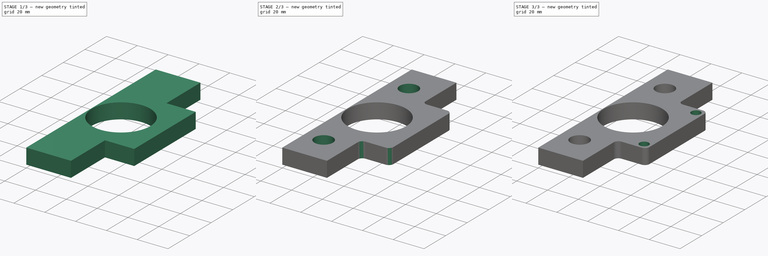
[diagram: build sequence overview — one tinted view per stage of 3, left to right]
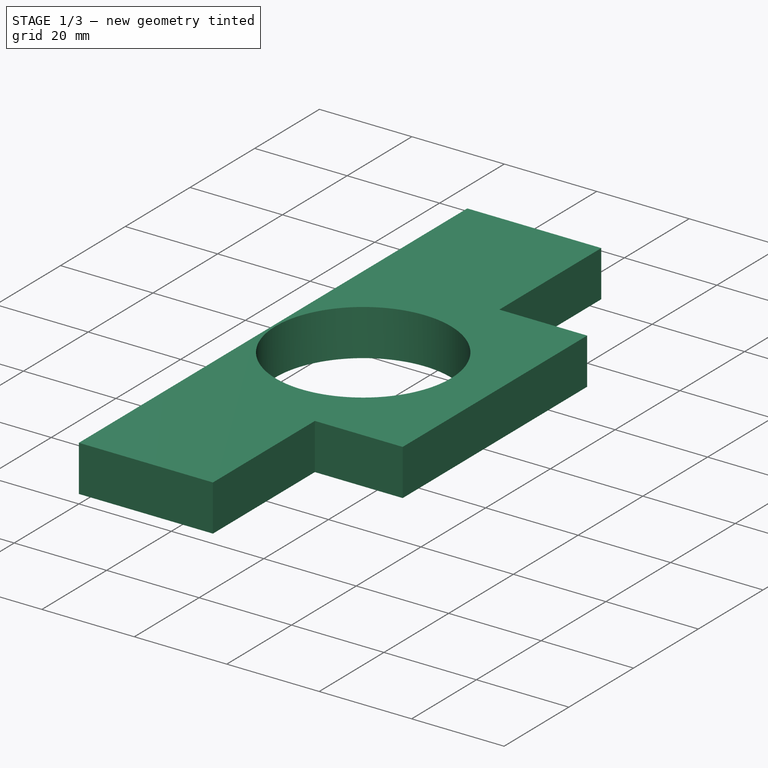
[diagram: stage 1 of 3 — iso view after this stage's code; geometry added in this stage tinted green]
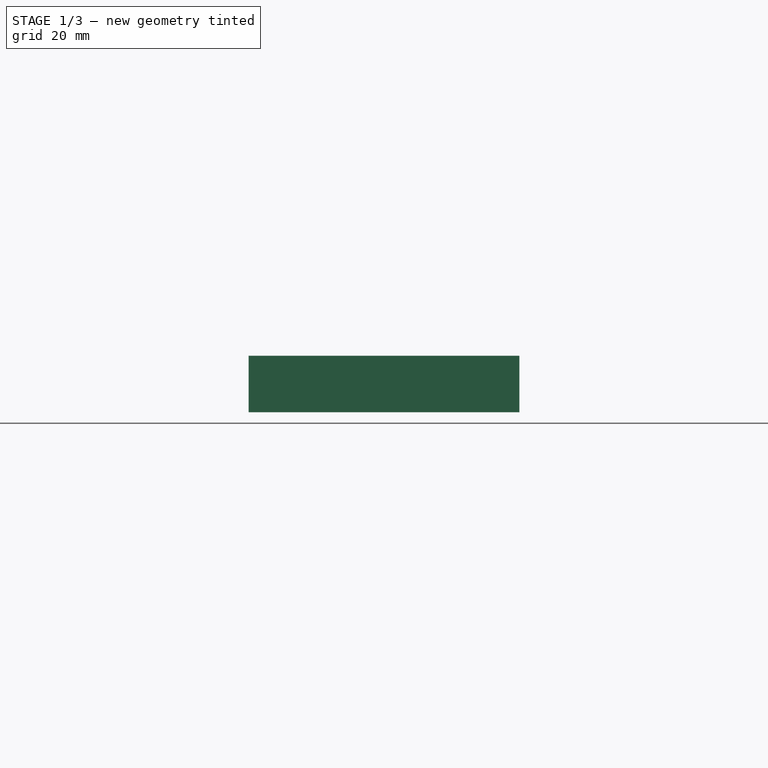
[diagram: stage 1 of 3 — front view after this stage's code; geometry added in this stage tinted green]
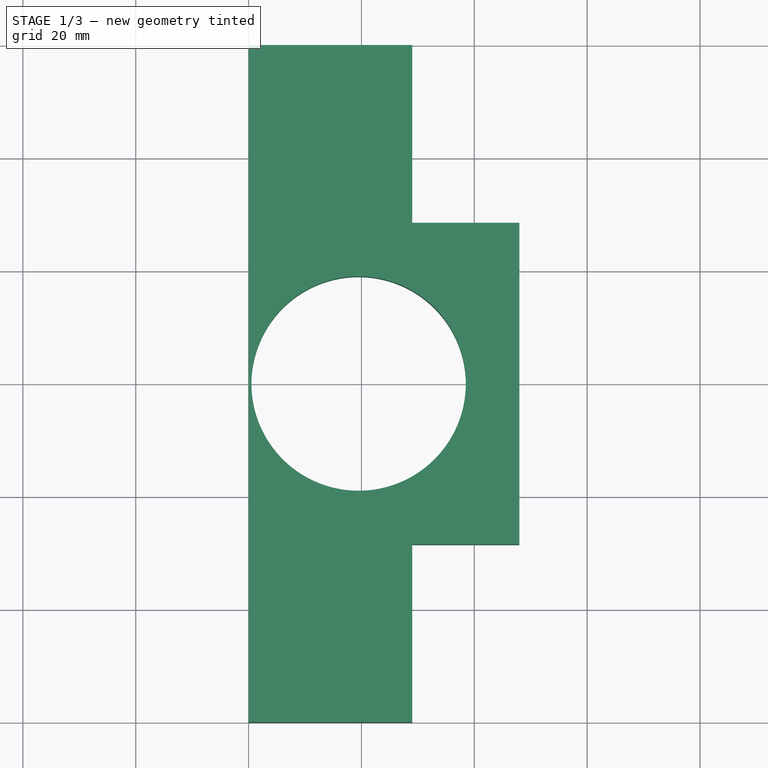
[diagram: stage 1 of 3 — top view after this stage's code; geometry added in this stage tinted green]
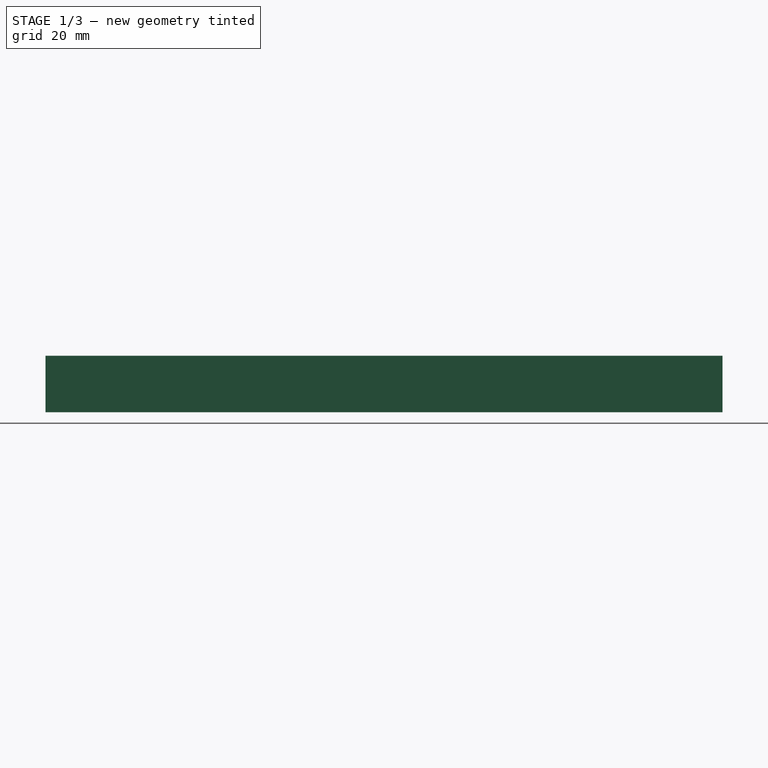
[diagram: stage 1 of 3 — right view after this stage's code; geometry added in this stage tinted green]
FCSTD DOCUMENT
Label: Z_T
objects: Sketcher::SketchObject×5, PartDesign::Pocket×4, PartDesign::Pad×1, Part::Fillet×1
note: 16 computed .brp shape members not serialized (recipe doc carries the construction recipe); baked Part::Feature solids carry a one-line shape summary decoded from their .brp

FEATURE [Sketcher::SketchObject] Sketch
  sketch-geometry (8):
    g0: LineSegment StartX=0 StartY=0 StartZ=0 EndX=0 EndY=120 EndZ=0
    g1: LineSegment StartX=0 StartY=120 StartZ=0 EndX=29 EndY=120 EndZ=0
    g2: LineSegment StartX=29 StartY=120 StartZ=0 EndX=29 EndY=88.5 EndZ=0
    g3: LineSegment StartX=29 StartY=88.5 StartZ=0 EndX=48 EndY=88.5 EndZ=0
    g4: LineSegment StartX=48 StartY=88.5 StartZ=0 EndX=48 EndY=31.5 EndZ=0
    g5: LineSegment StartX=48 StartY=31.5 StartZ=0 EndX=29 EndY=31.5 EndZ=0
    g6: LineSegment StartX=29 StartY=31.5 StartZ=0 EndX=29 EndY=0 EndZ=0
    g7: LineSegment StartX=29 StartY=0 StartZ=0 EndX=0 EndY=0 EndZ=0
  constraints (24):
    c: PointOnObject(g0,g-2)
    c: Vertical(g0)
    c: Coincident(g0,g1)
    c: Horizontal(g1)
    c: Coincident(g1,g2)
    c: Vertical(g2)
    c: Coincident(g2,g3)
    c: Horizontal(g3)
    c: Coincident(g3,g4)
    c: Vertical(g4)
    c: Coincident(g4,g5)
    c: Horizontal(g5)
    c: Coincident(g5,g6)
    c: PointOnObject(g6,g-1)
    c: Vertical(g6)
    c: Coincident(g6,g7)
    c: Coincident(g7,g-1)
    c: DistanceY(g0) = 120
    c: Coincident(g0,g-1)
    c: DistanceX(g3,g0) = -48
    c: DistanceY(g4) = -57
    c: Equal(g2,g6)
    c: Equal(g7,g1)
    c: DistanceX(g7) = -29
FEATURE [PartDesign::Pad] Pad
  Length = 10
  Length2 = 100
  Reversed = true
  Sketch = -> Sketch
  Type = 0
FEATURE [Sketcher::SketchObject] Sketch001
  Support = -> Pad [Face9]
  sketch-geometry (1):
    g0: Circle CenterX=19.5 CenterY=60 CenterZ=0 NormalX=0 NormalY=0 NormalZ=1 Radius=19
  constraints (3):
    c: DistanceX(g0) = 19.5
    c: DistanceY(g0) = 60
    c: Radius(g0) = 19
FEATURE [PartDesign::Pocket] Pocket
  Length = 5
  Sketch = -> Sketch001
  Type = 1
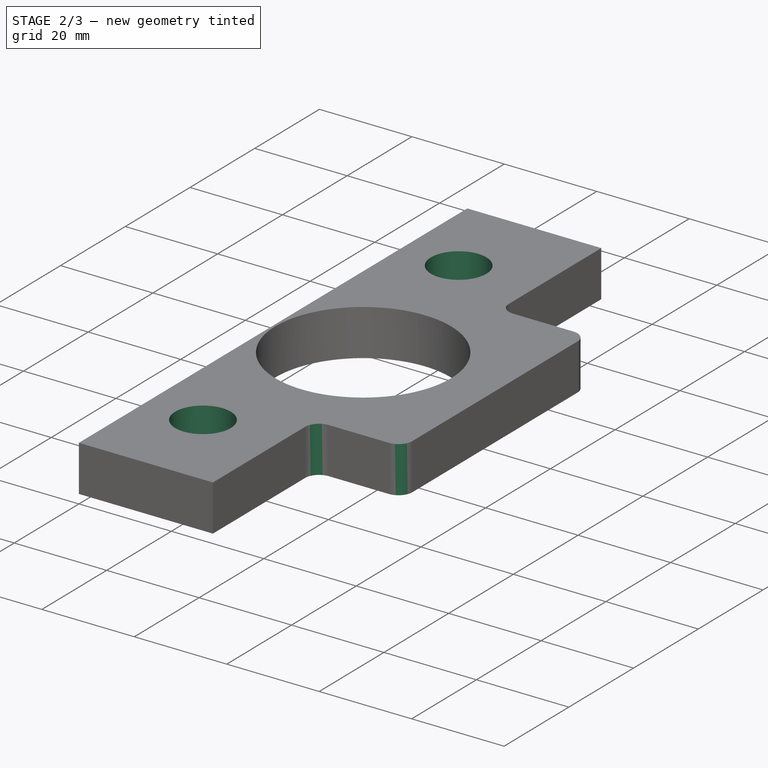
[diagram: stage 2 of 3 — iso view after this stage's code; geometry added in this stage tinted green]
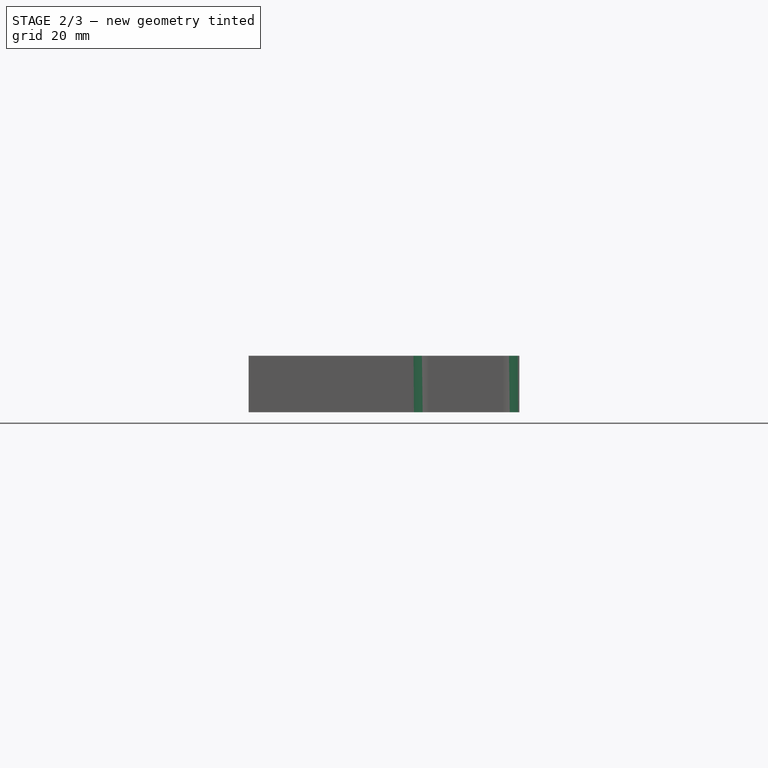
[diagram: stage 2 of 3 — front view after this stage's code; geometry added in this stage tinted green]
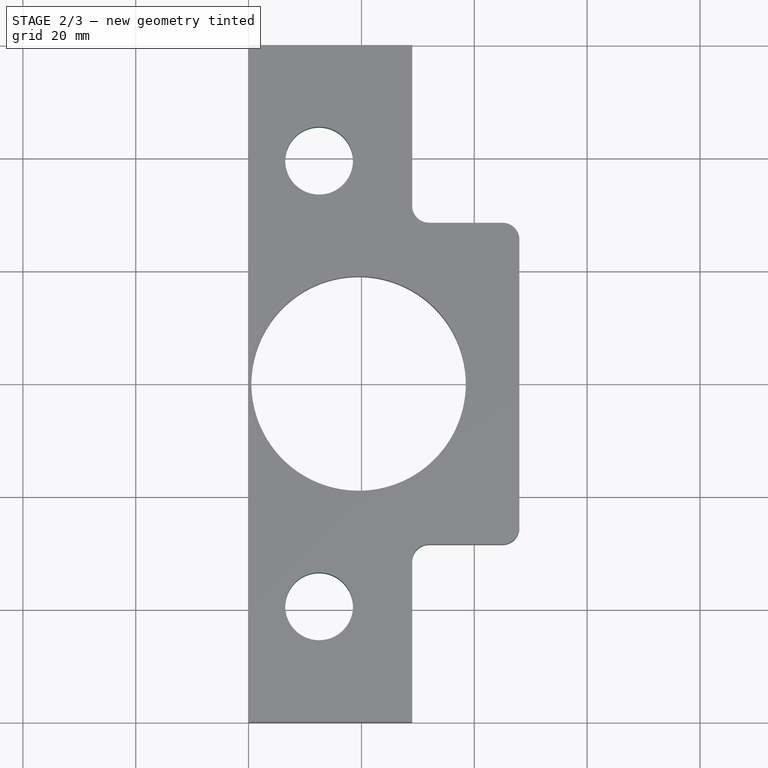
[diagram: stage 2 of 3 — top view after this stage's code; geometry added in this stage tinted green]
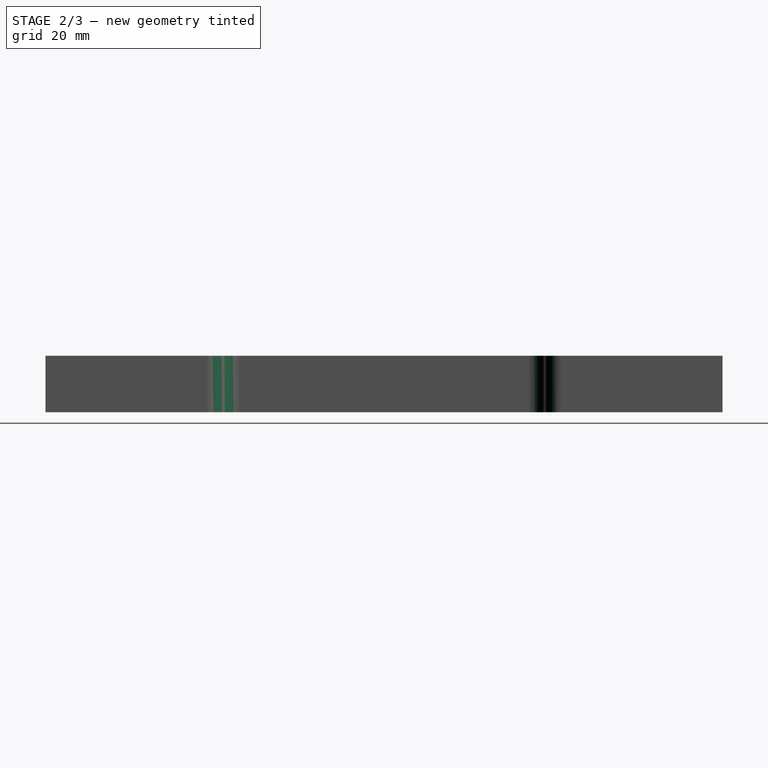
[diagram: stage 2 of 3 — right view after this stage's code; geometry added in this stage tinted green]
FEATURE [Sketcher::SketchObject] Sketch002
  Support = -> Pocket [Face4]
  sketch-geometry (3):
    g0: LineSegment [constr] StartX=0 StartY=60 StartZ=0 EndX=48 EndY=60 EndZ=0
    g1: Circle CenterX=12.5 CenterY=99.5 CenterZ=0 NormalX=0 NormalY=0 NormalZ=1 Radius=6
    g2: Circle CenterX=12.5 CenterY=20.5 CenterZ=0 NormalX=0 NormalY=0 NormalZ=1 Radius=6
  constraints (9):
    c: PointOnObject(g0,g-2)
    c: Horizontal(g0)
    c: DistanceX(g0) = 48
    c: DistanceY(g-1,g0) = 60
    c: Equal(g2,g1)
    c: Radius(g1) = 6
    c: Symmetric(g1,g2,g0)
    c: DistanceX(g2) = 12.5
    c: DistanceY(g2) = 20.5
FEATURE [PartDesign::Pocket] Pocket001
  Length = 5
  Sketch = -> Sketch002
  Type = 1
FEATURE [Part::Fillet] Fillet
  Base = -> Pocket001
  Edges = 4 edges r=3: [Edge30,Edge31,Edge35,Edge36]
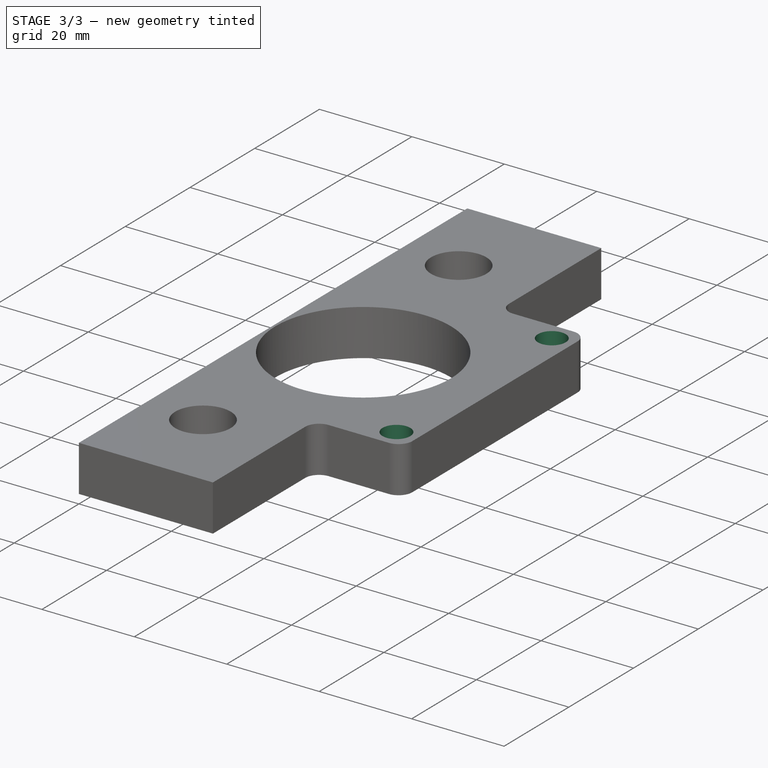
[diagram: stage 3 of 3 — iso view after this stage's code; geometry added in this stage tinted green]
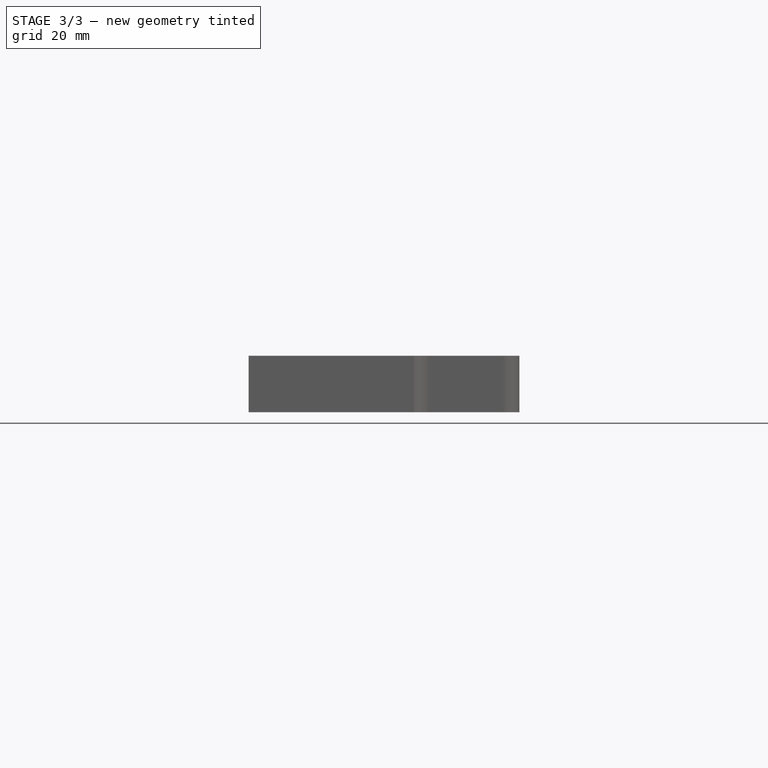
[diagram: stage 3 of 3 — front view after this stage's code; geometry added in this stage tinted green]
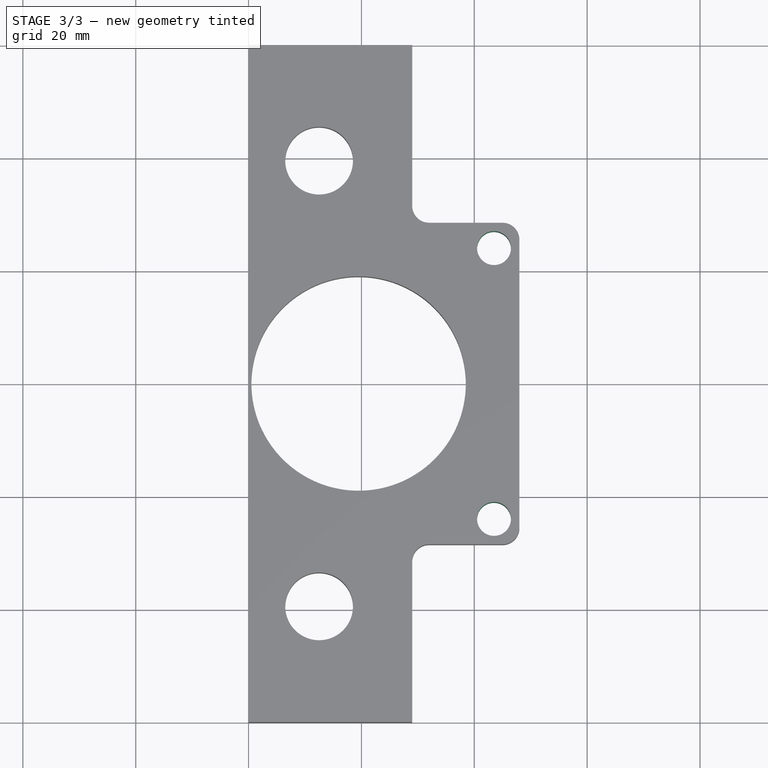
[diagram: stage 3 of 3 — top view after this stage's code; geometry added in this stage tinted green]
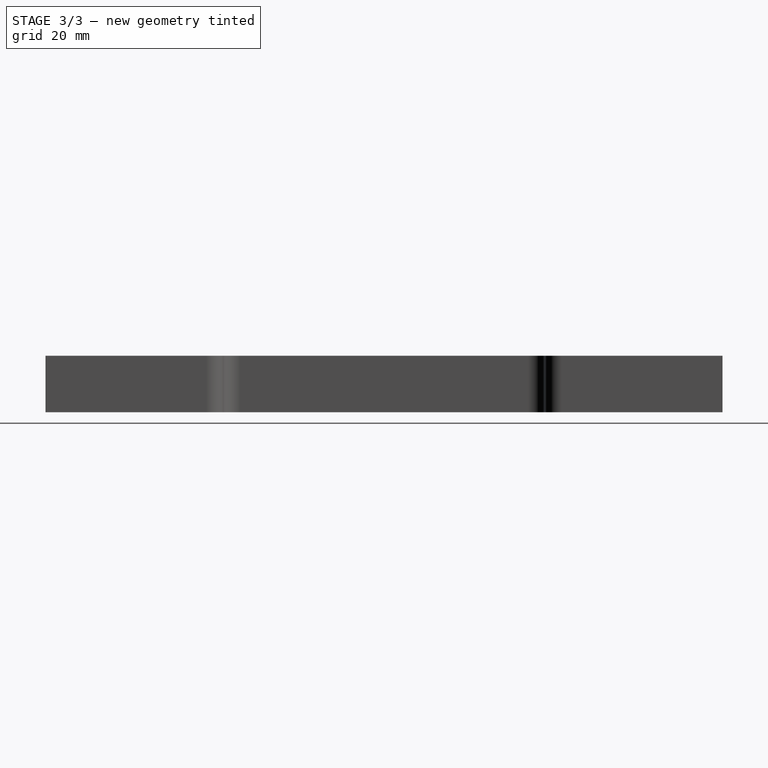
[diagram: stage 3 of 3 — right view after this stage's code; geometry added in this stage tinted green]
FEATURE [Sketcher::SketchObject] Sketch003
  Placement = pos=(0,0,0) rot=(0.57735,-0.57735,-0.57735;2.0944rad)
  Support = -> Fillet [Face6]
  sketch-geometry (6):
    g0: Circle CenterX=-111 CenterY=-5.5 CenterZ=0 NormalX=0 NormalY=0 NormalZ=1 Radius=3
    g1: Circle CenterX=-87 CenterY=-5.5 CenterZ=0 NormalX=0 NormalY=0 NormalZ=1 Radius=3
    g2: Circle CenterX=-33 CenterY=-5.5 CenterZ=0 NormalX=0 NormalY=0 NormalZ=1 Radius=3
    g3: Circle CenterX=-9 CenterY=-5.5 CenterZ=0 NormalX=0 NormalY=0 NormalZ=1 Radius=3
    g4: LineSegment [constr] StartX=-120 StartY=-5.5 StartZ=0 EndX=0 EndY=-5.5 EndZ=0
    g5: LineSegment [constr] StartX=-60 StartY=-10 StartZ=0 EndX=-60 EndY=0 EndZ=0
  constraints (19):
    c: PointOnObject(g4,g-2)
    c: Horizontal(g4)
    c: PointOnObject(g0,g4)
    c: PointOnObject(g1,g4)
    c: PointOnObject(g2,g4)
    c: PointOnObject(g3,g4)
    c: PointOnObject(g5,g-1)
    c: DistanceY(g5) = 10
    c: Equal(g0,g1)
    c: Equal(g1,g2)
    c: Equal(g2,g3)
    c: Radius(g3) = 3
    c: Symmetric(g2,g1,g5)
    c: Symmetric(g0,g3,g5)
    c: DistanceX(g4) = 120
    c: DistanceY(g-1,g4) = -5.5
    c: DistanceX(g-1,g5) = -60
    c: DistanceX(g3,g4) = 9
    c: DistanceX(g2,g4) = 33
FEATURE [PartDesign::Pocket] Pocket002
  Length = 15
  Sketch = -> Sketch003
  Type = 0
FEATURE [Sketcher::SketchObject] Sketch004
  Support = -> Pocket002 [Face1]
  sketch-geometry (3):
    g0: Circle CenterX=43.5 CenterY=84 CenterZ=0 NormalX=0 NormalY=0 NormalZ=1 Radius=3
    g1: Circle CenterX=43.5 CenterY=36 CenterZ=0 NormalX=0 NormalY=0 NormalZ=1 Radius=3
    g2: LineSegment [constr] StartX=0 StartY=60 StartZ=0 EndX=48 EndY=60 EndZ=0
  constraints (9):
    c: PointOnObject(g2,g-2)
    c: Horizontal(g2)
    c: DistanceX(g2) = 48
    c: DistanceY(g-1,g2) = 60
    c: Symmetric(g1,g0,g2)
    c: Equal(g0,g1)
    c: Radius(g0) = 3
    c: DistanceY(g1,g0) = 48
    c: DistanceX(g-1,g1) = 43.5
FEATURE [PartDesign::Pocket] Pocket003
  Length = 5
  Sketch = -> Sketch004
  Type = 1
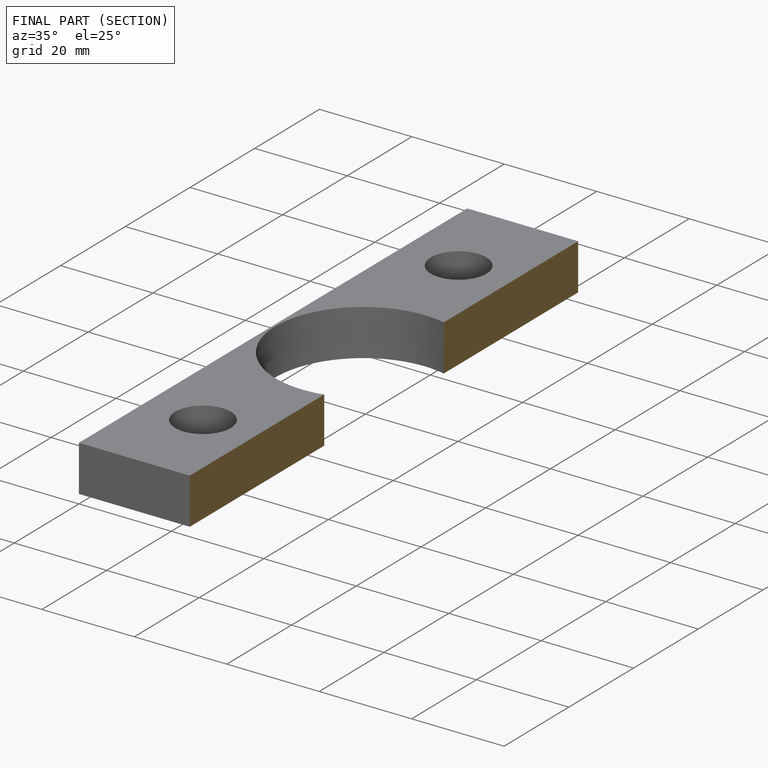
[diagram: finished part — half-section view (interior)]
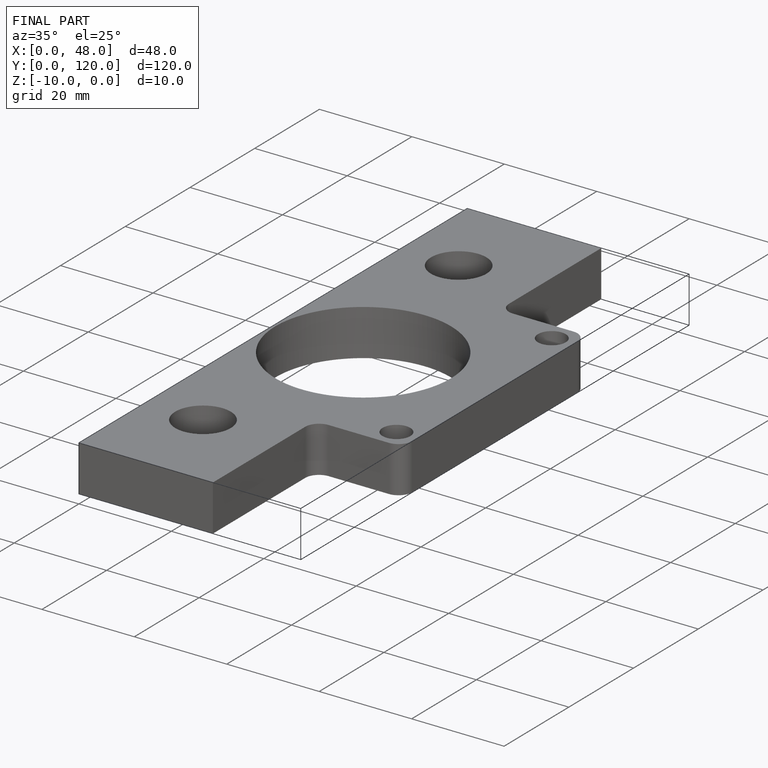
[diagram: finished part — iso view with bounding-box wireframe]
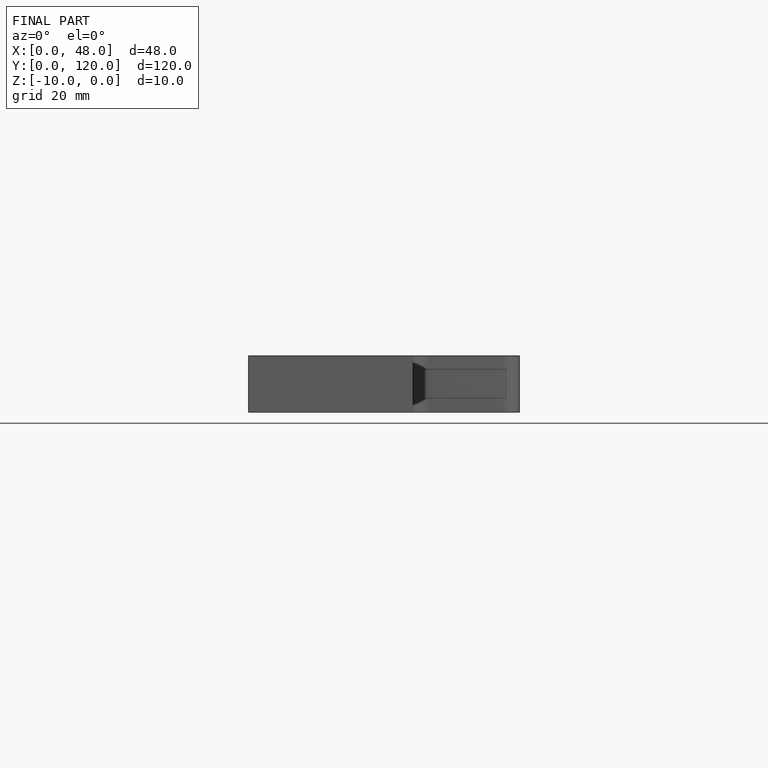
[diagram: finished part — front view with bounding-box wireframe]
